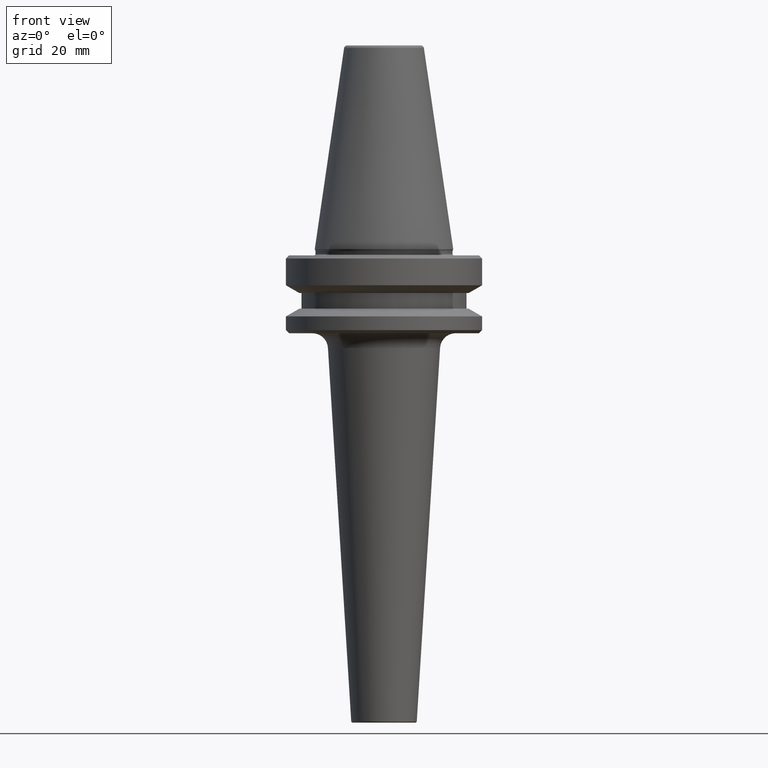
[diagram: clean part render]
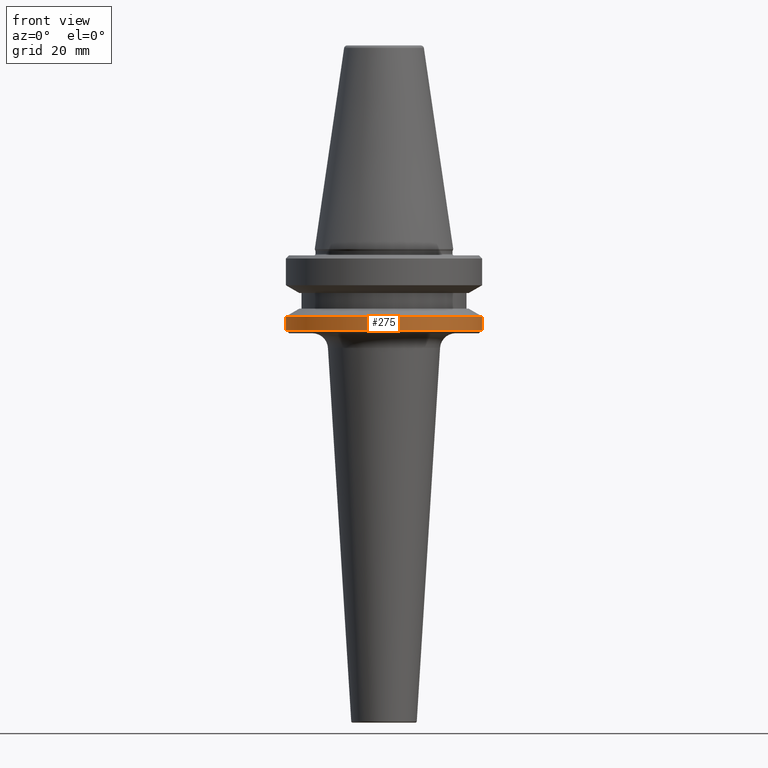
[diagram: same view with one face highlighted and labeled with its STEP entity id]
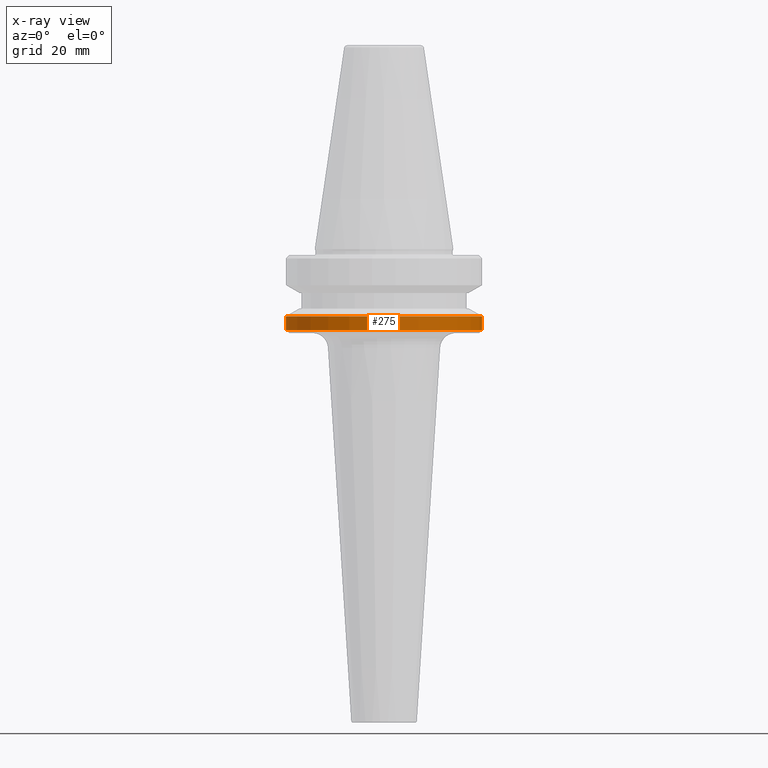
[diagram: x-ray of the same camera — body ghosted, the highlighted face saturated]
A machine part, front view. The second image highlights one B-rep face of the part: STEP entity #275.
The next image is the same camera in x-ray: the body ghosted, the highlighted face saturated — about 0% of this face is hidden behind the body in this view.
In plain terms, the highlighted cylindrical surface (partial cylindrical patch) has radius 31.5 mm, axis along (-0, -0, 1).
Its self-contained STEP definition (entity closure, byte-faithful):
#62 = AXIS2_PLACEMENT_3D ( 'NONE', #873, #948, #787 ) ;
#85 = CARTESIAN_POINT ( 'NONE',  ( 31.50000000000008500, 0.0000000000000000000, 6.357346922996331500 ) ) ;
#113 = CARTESIAN_POINT ( 'NONE',  ( 31.50000000000008500, 0.0000000000000000000, -87.00014200631733300 ) ) ;
#116 = VERTEX_POINT ( 'NONE', #113 ) ;
#149 = CARTESIAN_POINT ( 'NONE',  ( 0.0000000000000000000, 0.0000000000000000000, -87.00014200631733300 ) ) ;
#154 = VERTEX_POINT ( 'NONE', #420 ) ;
#161 = CARTESIAN_POINT ( 'NONE',  ( 31.50000000000008500, 0.0000000000000000000, -91.40000000000037500 ) ) ;
#207 = EDGE_CURVE ( 'NONE', #154, #490, #885, .T. ) ;
#235 = EDGE_CURVE ( 'NONE', #607, #116, #590, .T. ) ;
#270 = AXIS2_PLACEMENT_3D ( 'NONE', #486, #480, #952 ) ;
#275 = ADVANCED_FACE ( 'NONE', ( #741 ), #337, .T. ) ;
#337 = CYLINDRICAL_SURFACE ( 'NONE', #270, 31.50000000000008500 ) ;
#369 = ORIENTED_EDGE ( 'NONE', *, *, #207, .F. ) ;
#389 = EDGE_LOOP ( 'NONE', ( #369, #528, #892, #669 ) ) ;
#390 = VECTOR ( 'NONE', #391, 1000.000000000000000 ) ;
#391 = DIRECTION ( 'NONE',  ( -0.0000000000000000000, -0.0000000000000000000, 1.000000000000000000 ) ) ;
#408 = CIRCLE ( 'NONE', #421, 31.50000000000008500 ) ;
#420 = CARTESIAN_POINT ( 'NONE',  ( -31.50000000000008500, 3.857637417314172900E-015, -91.40000000000037500 ) ) ;
#421 = AXIS2_PLACEMENT_3D ( 'NONE', #149, #659, #640 ) ;
#480 = DIRECTION ( 'NONE',  ( -0.0000000000000000000, -0.0000000000000000000, 1.000000000000000000 ) ) ;
#486 = CARTESIAN_POINT ( 'NONE',  ( 0.0000000000000000000, 0.0000000000000000000, 6.357346922996331500 ) ) ;
#490 = VERTEX_POINT ( 'NONE', #776 ) ;
#500 = EDGE_CURVE ( 'NONE', #490, #116, #408, .T. ) ;
#528 = ORIENTED_EDGE ( 'NONE', *, *, #532, .T. ) ;
#532 = EDGE_CURVE ( 'NONE', #154, #607, #780, .T. ) ;
#590 = LINE ( 'NONE', #85, #390 ) ;
#607 = VERTEX_POINT ( 'NONE', #161 ) ;
#640 = DIRECTION ( 'NONE',  ( 1.000000000000000000, 0.0000000000000000000, 0.0000000000000000000 ) ) ;
#659 = DIRECTION ( 'NONE',  ( -0.0000000000000000000, -0.0000000000000000000, 1.000000000000000000 ) ) ;
#669 = ORIENTED_EDGE ( 'NONE', *, *, #500, .F. ) ;
#675 = CARTESIAN_POINT ( 'NONE',  ( -31.50000000000008500, 3.857637417314172900E-015, 6.357346922996331500 ) ) ;
#741 = FACE_OUTER_BOUND ( 'NONE', #389, .T. ) ;
#776 = CARTESIAN_POINT ( 'NONE',  ( -31.50000000000008500, 3.857637417314172900E-015, -87.00014200631733300 ) ) ;
#780 = CIRCLE ( 'NONE', #62, 31.50000000000008500 ) ;
#787 = DIRECTION ( 'NONE',  ( 1.000000000000000000, 0.0000000000000000000, 0.0000000000000000000 ) ) ;
#802 = VECTOR ( 'NONE', #845, 1000.000000000000000 ) ;
#845 = DIRECTION ( 'NONE',  ( -0.0000000000000000000, -0.0000000000000000000, 1.000000000000000000 ) ) ;
#873 = CARTESIAN_POINT ( 'NONE',  ( 0.0000000000000000000, 0.0000000000000000000, -91.40000000000037500 ) ) ;
#885 = LINE ( 'NONE', #675, #802 ) ;
#892 = ORIENTED_EDGE ( 'NONE', *, *, #235, .T. ) ;
#948 = DIRECTION ( 'NONE',  ( -0.0000000000000000000, -0.0000000000000000000, 1.000000000000000000 ) ) ;
#952 = DIRECTION ( 'NONE',  ( 1.000000000000000000, 0.0000000000000000000, 0.0000000000000000000 ) ) ;